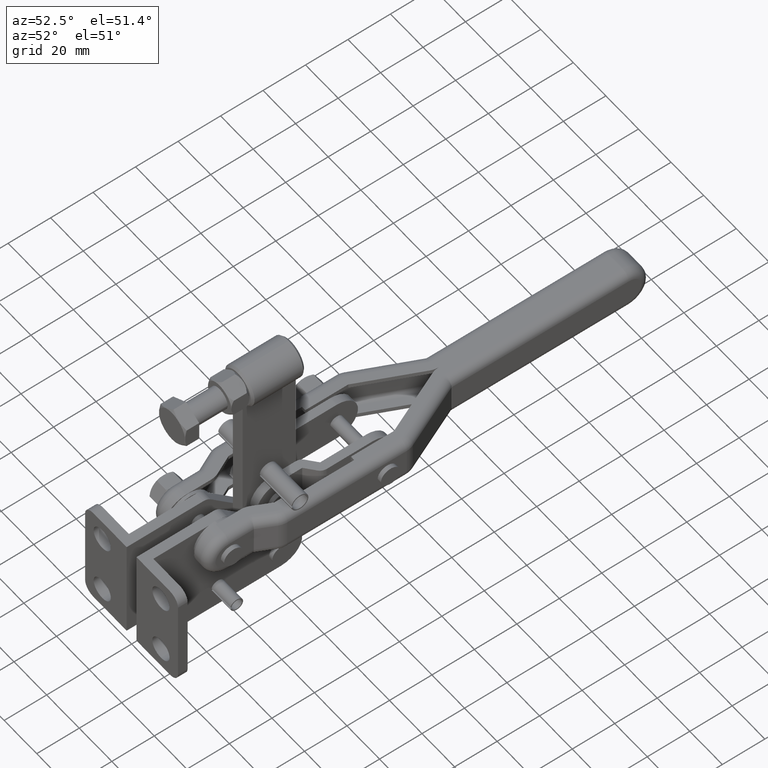
[diagram: clean part render]
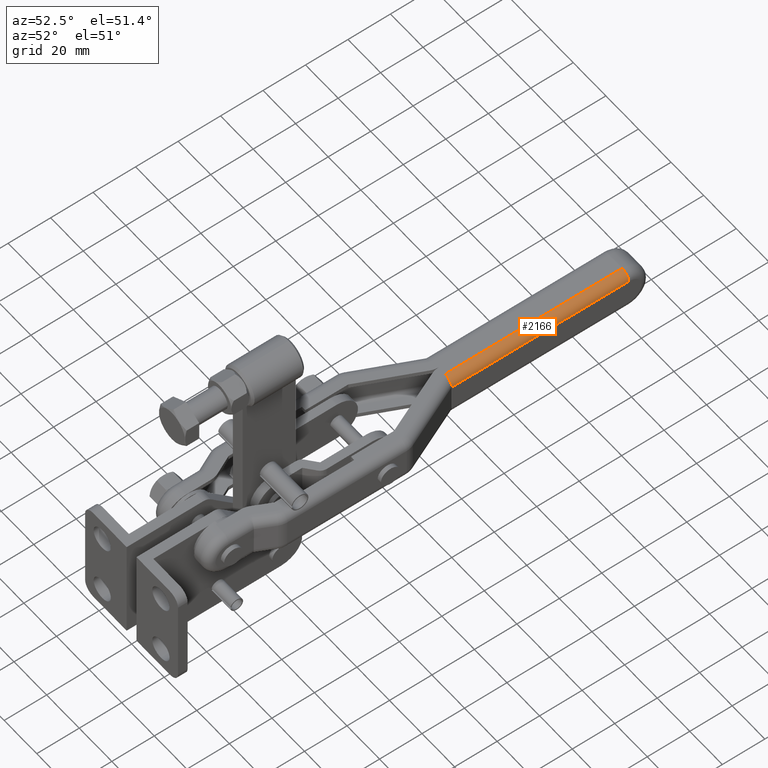
[diagram: same view with one face highlighted and labeled with its STEP entity id]
A machine part, auxiliary view. The second image highlights one B-rep face of the part: STEP entity #2166.
In plain terms, the highlighted cylindrical surface (edge-blend (fillet) strip) has radius 4 mm, axis along (-0, 1, -0.0024).
Its self-contained STEP definition (entity closure, byte-faithful):
#22 = FACE_OUTER_BOUND ( 'NONE', #16659, .T. ) ;
#1027 = EDGE_CURVE ( 'NONE', #5735, #21542, #4802, .T. ) ;
#1585 = EDGE_CURVE ( 'NONE', #15507, #21542, #20047, .T. ) ;
#1630 = VECTOR ( 'NONE', #14397, 1000.000000000000000 ) ;
#2166 = ADVANCED_FACE ( 'NONE', ( #22 ), #15807, .T. ) ;
#2682 = DIRECTION ( 'NONE',  ( 0.0000000000000000000, 0.002440711127170423400, 0.9999970214601610100 ) ) ;
#3909 = VERTEX_POINT ( 'NONE', #15402 ) ;
#4758 = AXIS2_PLACEMENT_3D ( 'NONE', #21428, #16359, #19889 ) ;
#4802 = CIRCLE ( 'NONE', #17564, 4.000000000000002700 ) ;
#5279 = DIRECTION ( 'NONE',  ( -2.589546550455469000E-016, 0.9999970214601610100, -0.002440711127167159500 ) ) ;
#5735 = VERTEX_POINT ( 'NONE', #16762 ) ;
#6702 = CIRCLE ( 'NONE', #15956, 4.000000000000002700 ) ;
#6973 = VECTOR ( 'NONE', #5279, 1000.000000000000000 ) ;
#7123 = DIRECTION ( 'NONE',  ( 2.775058632155479700E-016, -0.9999970214601610100, 0.002440711127167159500 ) ) ;
#7803 = DIRECTION ( 'NONE',  ( 2.775058632155479700E-016, -0.9999970214601610100, 0.002440711127167159500 ) ) ;
#8647 = CARTESIAN_POINT ( 'NONE',  ( 7.999999999999972500, 227.8744314644300200, -3.824394932692664300 ) ) ;
#8867 = EDGE_CURVE ( 'NONE', #3909, #15507, #6702, .T. ) ;
#10591 = ORIENTED_EDGE ( 'NONE', *, *, #1585, .T. ) ;
#11201 = CARTESIAN_POINT ( 'NONE',  ( 3.999999999999988900, 144.5368646231073100, -3.620991400146485800 ) ) ;
#11897 = ORIENTED_EDGE ( 'NONE', *, *, #1027, .F. ) ;
#13028 = CARTESIAN_POINT ( 'NONE',  ( 3.999999999999967100, 227.8841943089387000, 0.1755931531479837900 ) ) ;
#13360 = CARTESIAN_POINT ( 'NONE',  ( 3.999999999999988900, 144.5466274676159100, 0.3789966856941623900 ) ) ;
#13366 = ORIENTED_EDGE ( 'NONE', *, *, #8867, .T. ) ;
#14343 = CARTESIAN_POINT ( 'NONE',  ( 3.999999999999988900, 144.5466274676159100, 0.3789966856941623900 ) ) ;
#14397 = DIRECTION ( 'NONE',  ( 2.589546550455469000E-016, -0.9999970214601610100, 0.002440711127167159500 ) ) ;
#14716 = EDGE_CURVE ( 'NONE', #5735, #3909, #20966, .T. ) ;
#15402 = CARTESIAN_POINT ( 'NONE',  ( 7.999999999999972500, 227.8744314644300200, -3.824394932692664300 ) ) ;
#15507 = VERTEX_POINT ( 'NONE', #13028 ) ;
#15807 = CYLINDRICAL_SURFACE ( 'NONE', #4758, 4.000000000000000000 ) ;
#15956 = AXIS2_PLACEMENT_3D ( 'NONE', #17238, #7123, #18949 ) ;
#16359 = DIRECTION ( 'NONE',  ( -2.589546550455469000E-016, 0.9999970214601610100, -0.002440711127167159500 ) ) ;
#16659 = EDGE_LOOP ( 'NONE', ( #11897, #16840, #13366, #10591 ) ) ;
#16762 = CARTESIAN_POINT ( 'NONE',  ( 7.999999999999988500, 144.5368646231073100, -3.620991400146485800 ) ) ;
#16840 = ORIENTED_EDGE ( 'NONE', *, *, #14716, .T. ) ;
#17238 = CARTESIAN_POINT ( 'NONE',  ( 3.999999999999967100, 227.8744314644300200, -3.824394932692664300 ) ) ;
#17564 = AXIS2_PLACEMENT_3D ( 'NONE', #11201, #7803, #2682 ) ;
#18949 = DIRECTION ( 'NONE',  ( 0.0000000000000000000, 0.002440711127170423400, 0.9999970214601610100 ) ) ;
#19889 = DIRECTION ( 'NONE',  ( 1.000000000000000000, 0.0000000000000000000, 0.0000000000000000000 ) ) ;
#20047 = LINE ( 'NONE', #14343, #1630 ) ;
#20966 = LINE ( 'NONE', #8647, #6973 ) ;
#21428 = CARTESIAN_POINT ( 'NONE',  ( 3.999999999999989800, 141.1115025565329100, -3.612631055934403700 ) ) ;
#21542 = VERTEX_POINT ( 'NONE', #13360 ) ;